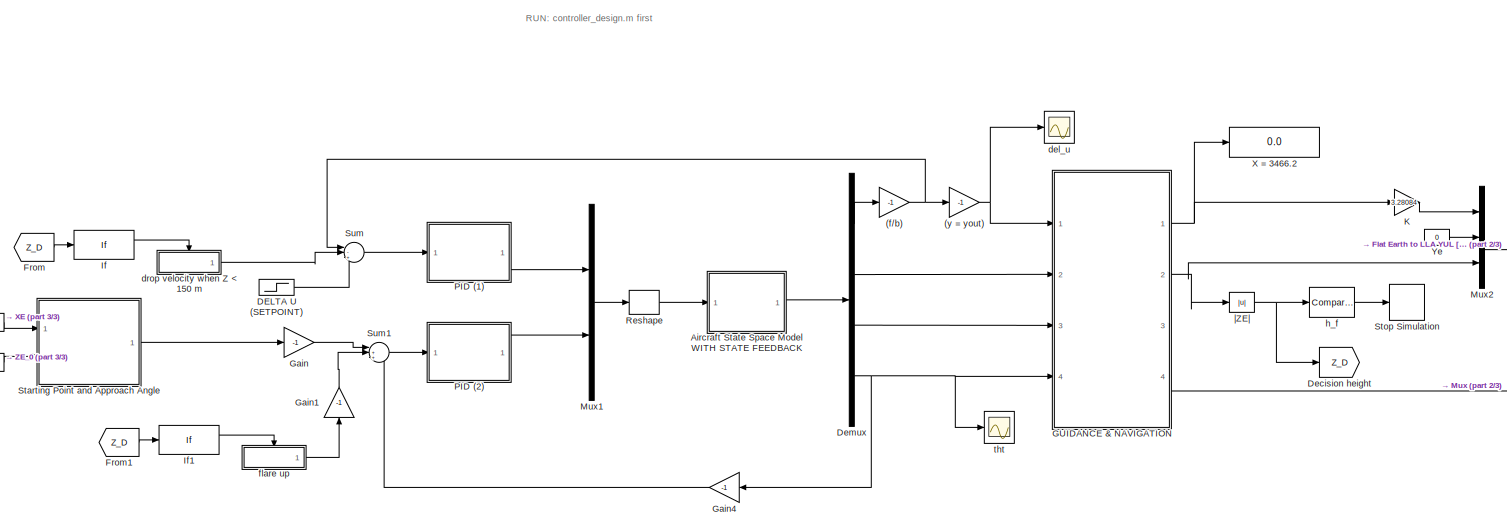
[diagram: root canvas - part 1/3, most of the canvas]
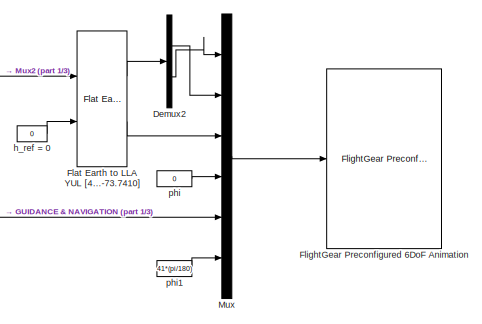
[diagram: root canvas - part 2/3, middle right region]
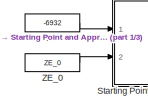
[diagram: root canvas - part 3/3, middle left region]
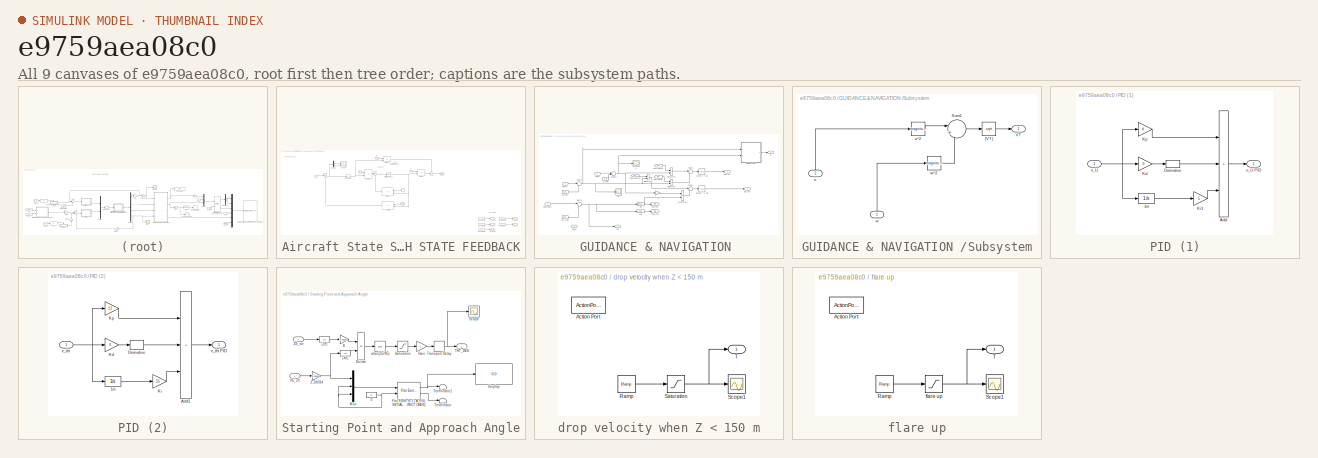
[diagram: thumbnail index - all 9 canvases of the model, root first then tree order]
MODEL slx_e9759aea08c0
KIND model
CONFIG AbsTol = auto
CONFIG EnableMultiTasking = on
CONFIG FixedStep = auto
CONFIG MaxStep = auto
CONFIG MinStep = auto
CONFIG RelTol = 1e-3
CONFIG SampleTimeConstraint = Unconstrained
CONFIG SolverName = ode45
CONFIG StartTime = 0.0
CONFIG StopTime = 196
BLOCK [Gain] (f//b)
  Gain = -1
BLOCK [Gain] (y = yout)
  Gain = -1
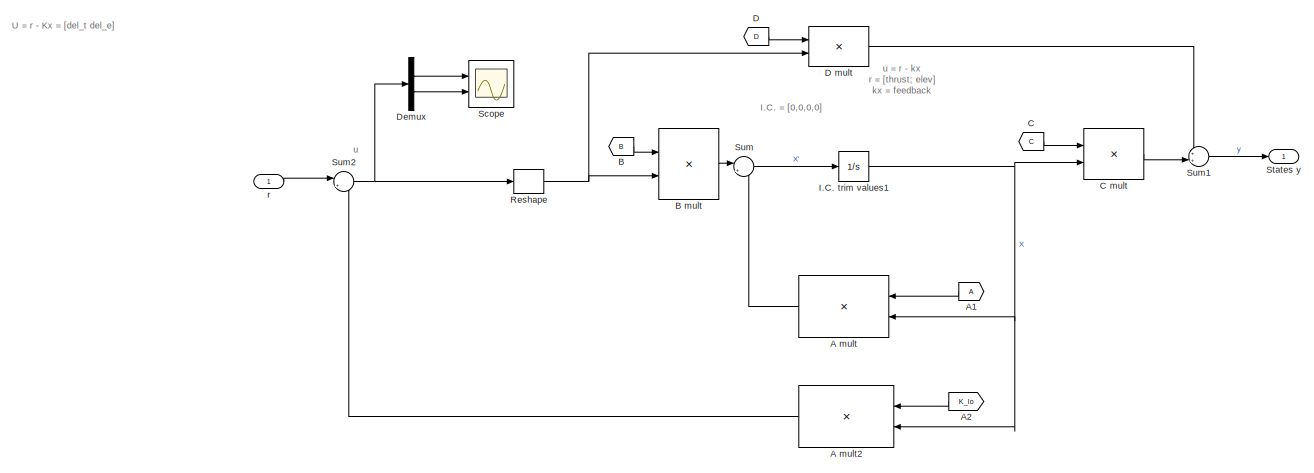
[diagram: Aircraft State Space Model WITH STATE FEEDBACK - part 1/2, central region]
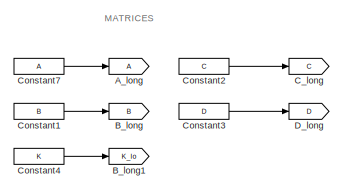
[diagram: Aircraft State Space Model WITH STATE FEEDBACK - part 2/2, bottom right region]
BLOCK [SubSystem] Aircraft State Space Model WITH STATE FEEDBACK
  Ports = [1, 1]
  RequestExecContextInheritance = off
BLOCK [Product] Aircraft State Space Model WITH STATE FEEDBACK/A mult
  Multiplication = Matrix(*)
  Ports = [2, 1]
  RndMeth = Zero
BLOCK [Product] Aircraft State Space Model WITH STATE FEEDBACK/A mult2
  Multiplication = Matrix(*)
  Ports = [2, 1]
  RndMeth = Zero
BLOCK [From] Aircraft State Space Model WITH STATE FEEDBACK/A1
  NameLocation = top
BLOCK [From] Aircraft State Space Model WITH STATE FEEDBACK/A2
  GotoTag = K_lo
  NameLocation = top
BLOCK [Goto] Aircraft State Space Model WITH STATE FEEDBACK/A_long
BLOCK [From] Aircraft State Space Model WITH STATE FEEDBACK/B
  GotoTag = B
  NameLocation = top
BLOCK [Product] Aircraft State Space Model WITH STATE FEEDBACK/B mult
  Multiplication = Matrix(*)
  Ports = [2, 1]
  RndMeth = Zero
BLOCK [Goto] Aircraft State Space Model WITH STATE FEEDBACK/B_long
  GotoTag = B
BLOCK [Goto] Aircraft State Space Model WITH STATE FEEDBACK/B_long1
  GotoTag = K_lo
BLOCK [From] Aircraft State Space Model WITH STATE FEEDBACK/C
  GotoTag = C
  NameLocation = top
BLOCK [Product] Aircraft State Space Model WITH STATE FEEDBACK/C mult
  Multiplication = Matrix(*)
  Ports = [2, 1]
  RndMeth = Zero
BLOCK [Goto] Aircraft State Space Model WITH STATE FEEDBACK/C_long
  GotoTag = C
BLOCK [Constant] Aircraft State Space Model WITH STATE FEEDBACK/Constant1
  Value = B
BLOCK [Constant] Aircraft State Space Model WITH STATE FEEDBACK/Constant2
  Value = C
BLOCK [Constant] Aircraft State Space Model WITH STATE FEEDBACK/Constant3
  Value = D
BLOCK [Constant] Aircraft State Space Model WITH STATE FEEDBACK/Constant4
  Value = K
BLOCK [Constant] Aircraft State Space Model WITH STATE FEEDBACK/Constant7
  Value = A
BLOCK [From] Aircraft State Space Model WITH STATE FEEDBACK/D
  GotoTag = D
  NameLocation = top
BLOCK [Product] Aircraft State Space Model WITH STATE FEEDBACK/D mult
  Multiplication = Matrix(*)
  Ports = [2, 1]
  RndMeth = Zero
BLOCK [Goto] Aircraft State Space Model WITH STATE FEEDBACK/D_long
  GotoTag = D
BLOCK [Demux] Aircraft State Space Model WITH STATE FEEDBACK/Demux
  Outputs = 2
  Ports = [1, 2]
BLOCK [Integrator] Aircraft State Space Model WITH STATE FEEDBACK/I.C. trim values1
  InitialCondition = [0;0;0;0]
  Ports = [1, 1]
BLOCK [Reshape] Aircraft State Space Model WITH STATE FEEDBACK/Reshape
  OutputDimensionality = Customize
  OutputDimensions = [2,1]
  Ports = [1, 1]
BLOCK [Scope] Aircraft State Space Model WITH STATE FEEDBACK/Scope
  Floating = off
  NumInputPorts = 2
  Ports = [2]
  ScopeSpecificationString = Simulink.scopes.TimeScopeBlockCfg('CurrentConfiguration', extmgr.ConfigurationSet(extmgr.Configuration('Core','General UI',true),extmgr.Configuration('Core','Source UI',true),extmgr.Configuration('Sources','WiredSimulink',true,'DataLogging',true,'DataLoggingVariableName','ScopeData2','DataLoggingSaveFormat','StructureWithTime'),extmgr.Configuration('Visuals','Time Domain',true,'SerializedDisplays'...<+2163ch>
BLOCK [Outport] Aircraft State Space Model WITH STATE FEEDBACK/States y
BLOCK [Sum] Aircraft State Space Model WITH STATE FEEDBACK/Sum
  Inputs = |++
  Ports = [2, 1]
BLOCK [Sum] Aircraft State Space Model WITH STATE FEEDBACK/Sum1
  Inputs = ++|
  Ports = [2, 1]
BLOCK [Sum] Aircraft State Space Model WITH STATE FEEDBACK/Sum2
  Inputs = |+-
  Ports = [2, 1]
BLOCK [Inport] Aircraft State Space Model WITH STATE FEEDBACK/r
BLOCK [Step] DELTA U (SETPOINT)
  After = 36
  SampleTime = 0
BLOCK [Goto] Decision height
  GotoTag = Z_D
BLOCK [Demux] Demux
  Ports = [1, 4]
BLOCK [Demux] Demux2
  Outputs = 2
  Ports = [1, 2]
BLOCK [Reference] Flat Earth to LLA YUL [45.4572 -73.7410]   REF=aerolibtransform2/Flat Earth to LLA
  Ports = [2, 2]
  SourceBlock = aerolibtransform2/Flat Earth to LLA
  SourceProductBaseCode = AE
  SourceType = Flat Earth to LLA
BLOCK [Reference] FlightGear Preconfigured 6DoF Animation  REF=aerolibfltsims/FlightGear
Preconfigured
6DoF Animation
  AttributesFormatString = Version Selected: %<xFlightGearVersion>
  Ports = [1]
  SourceBlock = aerolibfltsims/FlightGear\nPreconfigured\n6DoF Animation
  SourceProductBaseCode = AE
  SourceType = FlightGearQuick6DoFAnimation
BLOCK [From] From
  GotoTag = Z_D
BLOCK [From] From1
  GotoTag = Z_D
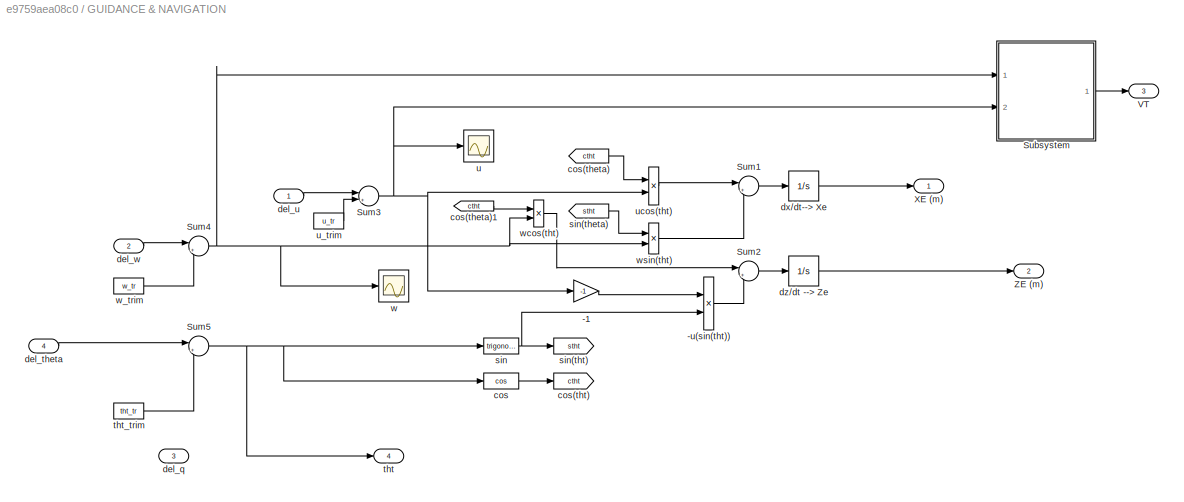
BLOCK [SubSystem] GUIDANCE & NAVIGATION 
  Ports = [4, 4]
  RequestExecContextInheritance = off
BLOCK [Gain] GUIDANCE & NAVIGATION /-1
  Gain = -1
BLOCK [Product] GUIDANCE & NAVIGATION /-u(sin(tht))
  Ports = [2, 1]
BLOCK [SubSystem] GUIDANCE & NAVIGATION /Subsystem
  Ports = [2, 1]
  RequestExecContextInheritance = off
BLOCK [Sum] GUIDANCE & NAVIGATION /Subsystem/Sum1
  Inputs = |++
  Ports = [2, 1]
BLOCK [Outport] GUIDANCE & NAVIGATION /Subsystem/VT
BLOCK [Inport] GUIDANCE & NAVIGATION /Subsystem/u
  NameLocation = right
  Port = 2
BLOCK [Math] GUIDANCE & NAVIGATION /Subsystem/u^2
  Operator = magnitude^2
  Ports = [1, 1]
  SignedPower = on
BLOCK [Inport] GUIDANCE & NAVIGATION /Subsystem/w
  NameLocation = right
BLOCK [Math] GUIDANCE & NAVIGATION /Subsystem/w^2
  Operator = magnitude^2
  Ports = [1, 1]
  SignedPower = on
BLOCK [Sqrt] GUIDANCE & NAVIGATION /Subsystem/|VT|
BLOCK [Sum] GUIDANCE & NAVIGATION /Sum1
  Inputs = |++
  Ports = [2, 1]
BLOCK [Sum] GUIDANCE & NAVIGATION /Sum2
  Inputs = |++
  Ports = [2, 1]
BLOCK [Sum] GUIDANCE & NAVIGATION /Sum3
  Inputs = |++
  Ports = [2, 1]
BLOCK [Sum] GUIDANCE & NAVIGATION /Sum4
  Inputs = |++
  Ports = [2, 1]
BLOCK [Sum] GUIDANCE & NAVIGATION /Sum5
  Inputs = |++
  Ports = [2, 1]
BLOCK [Outport] GUIDANCE & NAVIGATION /VT
  Port = 3
BLOCK [Outport] GUIDANCE & NAVIGATION /XE (m)
BLOCK [Outport] GUIDANCE & NAVIGATION /ZE (m)
  Port = 2
BLOCK [Trigonometry] GUIDANCE & NAVIGATION /cos
  Operator = cos
  Ports = [1, 1]
BLOCK [From] GUIDANCE & NAVIGATION /cos(theta)
  GotoTag = ctht
BLOCK [From] GUIDANCE & NAVIGATION /cos(theta)1
  GotoTag = ctht
BLOCK [Goto] GUIDANCE & NAVIGATION /cos(tht)
  GotoTag = ctht
BLOCK [Inport] GUIDANCE & NAVIGATION /del_q
  Port = 3
BLOCK [Inport] GUIDANCE & NAVIGATION /del_theta
  Port = 4
BLOCK [Inport] GUIDANCE & NAVIGATION /del_u
BLOCK [Inport] GUIDANCE & NAVIGATION /del_w
  Port = 2
BLOCK [Integrator] GUIDANCE & NAVIGATION /dx//dt--> Xe
  InitialCondition = XE_0
  Ports = [1, 1]
BLOCK [Integrator] GUIDANCE & NAVIGATION /dz//dt --> Ze
  InitialCondition = ZE_0
  Ports = [1, 1]
BLOCK [Trigonometry] GUIDANCE & NAVIGATION /sin
  Ports = [1, 1]
BLOCK [From] GUIDANCE & NAVIGATION /sin(theta)
  GotoTag = stht
BLOCK [Goto] GUIDANCE & NAVIGATION /sin(tht)
  GotoTag = stht
BLOCK [Outport] GUIDANCE & NAVIGATION /tht
  Port = 4
BLOCK [Constant] GUIDANCE & NAVIGATION /tht_trim
  Value = tht_tr
BLOCK [Scope] GUIDANCE & NAVIGATION /u
  Floating = off
  NumInputPorts = 1
  Ports = [1]
  ScopeSpecificationString = C++SS(StrPVP('Location','[188, 365, 512, 604]'),StrPVP('Open','off'),MxPVP('AxesTitles',54,'struct(''axes1'',''%<SignalLabel>'')'),MxPVP('ScopeGraphics',57,'struct(''FigureColor'',''[0.5 0.5 0.5]'',''AxesColor'',''[0 0 0]'',''AxesTickColor'',''[1 1 1]'',''LineColors'',''[1 1 0;1 0 1;0 1 1;1 0 0;0 1 0;0 0 1]'',''LineStyles'',''-|-|-|-|-|-'',''LineWidths'',''[0.5 0.5 0.5 0.5 0.5 0.5]'',''MarkerStyle...<+196ch>
BLOCK [Constant] GUIDANCE & NAVIGATION /u_trim
  Value = u_tr
BLOCK [Product] GUIDANCE & NAVIGATION /ucos(tht)
  Ports = [2, 1]
BLOCK [Scope] GUIDANCE & NAVIGATION /w
  Floating = off
  NumInputPorts = 1
  Ports = [1]
  ScopeSpecificationString = C++SS(StrPVP('Location','[188, 365, 512, 604]'),StrPVP('Open','off'),MxPVP('AxesTitles',54,'struct(''axes1'',''%<SignalLabel>'')'),MxPVP('ScopeGraphics',57,'struct(''FigureColor'',''[0.5 0.5 0.5]'',''AxesColor'',''[0 0 0]'',''AxesTickColor'',''[1 1 1]'',''LineColors'',''[1 1 0;1 0 1;0 1 1;1 0 0;0 1 0;0 0 1]'',''LineStyles'',''-|-|-|-|-|-'',''LineWidths'',''[0.5 0.5 0.5 0.5 0.5 0.5]'',''MarkerStyle...<+196ch>
BLOCK [Constant] GUIDANCE & NAVIGATION /w_trim
  Value = w_tr
BLOCK [Product] GUIDANCE & NAVIGATION /wcos(tht)
  Ports = [2, 1]
BLOCK [Product] GUIDANCE & NAVIGATION /wsin(tht)
  Ports = [2, 1]
BLOCK [Gain] Gain
  Gain = -1
BLOCK [Gain] Gain1
  Gain = -1
  NameLocation = right
BLOCK [Gain] Gain4
  Gain = -1
  NameLocation = top
BLOCK [If] If
  IfExpression = u1 <= 100
  Ports = [1, 2]
BLOCK [If] If1
  IfExpression = u1 <= 100
  Ports = [1, 2]
BLOCK [Gain] K
  Gain = 3.28084
BLOCK [Mux] Mux
  DisplayOption = bar
  Inputs = 6
  Ports = [6, 1]
BLOCK [Mux] Mux1
  DisplayOption = bar
  Inputs = 2
  Ports = [2, 1]
BLOCK [Mux] Mux2
  DisplayOption = bar
  Inputs = 3
  Ports = [3, 1]
BLOCK [SubSystem] PID (1)
  Ports = [1, 1]
  RequestExecContextInheritance = off
BLOCK [Integrator] PID (1)/1//s
  Ports = [1, 1]
BLOCK [Sum] PID (1)/Add
  IconShape = rectangular
  Inputs = +++
  Ports = [3, 1]
BLOCK [Derivative] PID (1)/Derivative
BLOCK [Gain] PID (1)/Kd
  Gain = 0
BLOCK [Gain] PID (1)/Ki1
  Gain = 5
BLOCK [Gain] PID (1)/Kp
BLOCK [Inport] PID (1)/e_U
BLOCK [Outport] PID (1)/e_U PID
BLOCK [SubSystem] PID (2)
  Ports = [1, 1]
  RequestExecContextInheritance = off
BLOCK [Integrator] PID (2)/1//s
  Ports = [1, 1]
BLOCK [Sum] PID (2)/Add1
  IconShape = rectangular
  Inputs = +++
  Ports = [3, 1]
BLOCK [Derivative] PID (2)/Derivative
BLOCK [Gain] PID (2)/Kd 
  Gain = 0
BLOCK [Gain] PID (2)/Ki 
  Gain = 55
BLOCK [Gain] PID (2)/Kp
  Gain = 12
BLOCK [Inport] PID (2)/e_tht
BLOCK [Outport] PID (2)/e_tht PID
BLOCK [Reshape] Reshape
  OutputDimensionality = Customize
  OutputDimensions = [2,1]
  Ports = [1, 1]
BLOCK [SubSystem] Starting Point and Approach Angle
  Ports = [2, 1]
  RequestExecContextInheritance = off
BLOCK [Constant] Starting Point and Approach Angle/0
  Value = 0
BLOCK [Gain] Starting Point and Approach Angle/3.28084
  Gain = 3.28084
BLOCK [Display] Starting Point and Approach Angle/Display
  Decimation = 1
  Format = long
  Ports = [1]
BLOCK [Product] Starting Point and Approach Angle/Divide
  Inputs = */
  Ports = [2, 1]
BLOCK [Reference] Starting Point and Approach Angle/Flat Earth to LLA {YUL INITIAL COORDS UPDATED - CORRECT ONES}  REF=aerolibtransform2/Flat Earth to LLA
  Ports = [2, 2]
  SourceBlock = aerolibtransform2/Flat Earth to LLA
  SourceProductBaseCode = AE
  SourceType = Flat Earth to LLA
BLOCK [Gain] Starting Point and Approach Angle/Gain
  Gain = -1
BLOCK [Gain] Starting Point and Approach Angle/K
  Gain = 3.28084
BLOCK [Mux] Starting Point and Approach Angle/Mux
  DisplayOption = bar
  Inputs = 3
  Ports = [3, 1]
BLOCK [Saturate] Starting Point and Approach Angle/Saturation
  LowerLimit = -0.5235
  UpperLimit = 0.5235
BLOCK [Scope] Starting Point and Approach Angle/Scope
  Floating = off
  NumInputPorts = 1
  Ports = [1]
  ScopeSpecificationString = C++SS(StrPVP('Location','[188, 365, 1263, 701]'),StrPVP('Open','off'),MxPVP('AxesTitles',54,'struct(''axes1'',''%<SignalLabel>'')'),MxPVP('ScopeGraphics',57,'struct(''FigureColor'',''[0.5 0.5 0.5]'',''AxesColor'',''[0 0 0]'',''AxesTickColor'',''[1 1 1]'',''LineColors'',''[1 1 0;1 0 1;0 1 1;1 0 0;0 1 0;0 0 1]'',''LineStyles'',''-|-|-|-|-|-'',''LineWidths'',''[0.5 0.5 0.5 0.5 0.5 0.5]'',''MarkerStyl...<+197ch>
BLOCK [Outport] Starting Point and Approach Angle/THT_DES
BLOCK [Terminator] Starting Point and Approach Angle/Terminator
BLOCK [Terminator] Starting Point and Approach Angle/Terminator1
BLOCK [TransportDelay] Starting Point and Approach Angle/Transport Delay
  Ports = [1, 1]
BLOCK [Inport] Starting Point and Approach Angle/XE_str
BLOCK [Inport] Starting Point and Approach Angle/ZE_str
  Port = 2
BLOCK [Trigonometry] Starting Point and Approach Angle/atan(ZE//XE)
  Operator = atan
  Ports = [1, 1]
BLOCK [Abs] Starting Point and Approach Angle/|Xe|
  SaturateOnIntegerOverflow = off
BLOCK [Abs] Starting Point and Approach Angle/|Ze|
  SaturateOnIntegerOverflow = off
BLOCK [Stop] Stop Simulation
BLOCK [Sum] Sum
  Inputs = |-++
  Ports = [3, 1]
BLOCK [Sum] Sum1
  Inputs = |++-
  Ports = [3, 1]
BLOCK [Display] X = 3466.2
  Decimation = 1
  Ports = [1]
BLOCK [Constant] XE 
  Value = -6932
BLOCK [Constant] Ye
  Value = 0
BLOCK [Constant] ZE_0
  Value = ZE_0
BLOCK [Scope] del_u
  Floating = off
  NumInputPorts = 1
  Ports = [1]
  ScopeSpecificationString = C++SS(StrPVP('Location','[10, 69, 1930, 1099]'),StrPVP('Open','off'),MxPVP('AxesTitles',54,'struct(''axes1'',''%<SignalLabel>'')'),MxPVP('ScopeGraphics',57,'struct(''FigureColor'',''[0.5 0.5 0.5]'',''AxesColor'',''[0 0 0]'',''AxesTickColor'',''[1 1 1]'',''LineColors'',''[1 1 0;1 0 1;0 1 1;1 0 0;0 1 0;0 0 1]'',''LineStyles'',''-|-|-|-|-|-'',''LineWidths'',''[0.5 0.5 0.5 0.5 0.5 0.5]'',''MarkerStyle...<+250ch>
BLOCK [SubSystem] drop velocity when Z < 150 m
  Ports = [0, 1, 0, 0, 0, 0, 0, 1]
  RequestExecContextInheritance = off
  TreatAsAtomicUnit = on
BLOCK [ActionPort] drop velocity when Z < 150 m/Action Port
  ActionPortLabel = if(u1 <= 100)
BLOCK [Reference] drop velocity when Z < 150 m/Ramp  REF=simulink/Sources/Ramp
  Ports = [0, 1]
  SourceBlock = simulink/Sources/Ramp
  SourceProductBaseCode = SL
  SourceType = Ramp
BLOCK [Saturate] drop velocity when Z < 150 m/Saturation
  LowerLimit = 0
  UpperLimit = 15
BLOCK [Scope] drop velocity when Z < 150 m/Scope1
  Floating = off
  NumInputPorts = 1
  Ports = [1]
  ScopeSpecificationString = C++SS(StrPVP('Location','[10, 60, 1930, 1050]'),StrPVP('Open','off'),MxPVP('AxesTitles',54,'struct(''axes1'',''%<SignalLabel>'')'),MxPVP('ScopeGraphics',57,'struct(''FigureColor'',''[0.5 0.5 0.5]'',''AxesColor'',''[0 0 0]'',''AxesTickColor'',''[1 1 1]'',''LineColors'',''[1 1 0;1 0 1;0 1 1;1 0 0;0 1 0;0 0 1]'',''LineStyles'',''-|-|-|-|-|-'',''LineWidths'',''[0.5 0.5 0.5 0.5 0.5 0.5]'',''MarkerStyle...<+261ch>
BLOCK [Outport] drop velocity when Z < 150 m/T
BLOCK [SubSystem] flare up
  Ports = [0, 1, 0, 0, 0, 0, 0, 1]
  RequestExecContextInheritance = off
  TreatAsAtomicUnit = on
BLOCK [ActionPort] flare up/Action Port
  ActionPortLabel = if(u1 <= 100)
BLOCK [Reference] flare up/Ramp  REF=simulink/Sources/Ramp
  Ports = [0, 1]
  SourceBlock = simulink/Sources/Ramp
  SourceProductBaseCode = SL
  SourceType = Ramp
BLOCK [Scope] flare up/Scope1
  Floating = off
  NumInputPorts = 1
  Ports = [1]
  ScopeSpecificationString = C++SS(StrPVP('Location','[10, 60, 1930, 1050]'),StrPVP('Open','off'),MxPVP('AxesTitles',54,'struct(''axes1'',''%<SignalLabel>'')'),MxPVP('ScopeGraphics',57,'struct(''FigureColor'',''[0.5 0.5 0.5]'',''AxesColor'',''[0 0 0]'',''AxesTickColor'',''[1 1 1]'',''LineColors'',''[1 1 0;1 0 1;0 1 1;1 0 0;0 1 0;0 0 1]'',''LineStyles'',''-|-|-|-|-|-'',''LineWidths'',''[0.5 0.5 0.5 0.5 0.5 0.5]'',''MarkerStyle...<+261ch>
BLOCK [Outport] flare up/T
BLOCK [Saturate] flare up/flare up
  LowerLimit = 0
  UpperLimit = 0.7403
BLOCK [Reference] h_f  REF=simulink/Logic and Bit
Operations/Compare
To Constant
  Ports = [1, 1]
  SourceBlock = simulink/Logic and Bit\nOperations/Compare\nTo Constant
  SourceProductBaseCode = SL
  SourceType = Compare To Constant
BLOCK [Constant] h_ref = 0
  Value = 0
BLOCK [Constant] phi
  Value = 0
BLOCK [Constant] phi1
  Value = 41*(pi/180)
BLOCK [Scope] tht
  Floating = off
  NumInputPorts = 1
  Ports = [1]
  ScopeSpecificationString = C++SS(StrPVP('Location','[10, 69, 1930, 1099]'),StrPVP('Open','off'),MxPVP('AxesTitles',54,'struct(''axes1'',''%<SignalLabel>'')'),MxPVP('ScopeGraphics',57,'struct(''FigureColor'',''[0.501960784313725 0.501960784313725 0.501960784313725]'',''AxesColor'',''[0 0 0]'',''AxesTickColor'',''[1 1 1]'',''LineColors'',''[1 1 0;1 0 1;0 1 1;1 0 0;0 1 0;0 0 1]'',''LineStyles'',''-|-|-|-|-|-'',''LineWidths'','...<+255ch>
BLOCK [Abs] |ZE|
  SaturateOnIntegerOverflow = off
ANNOTATION (root): RUN: controller_design.m first
ANNOTATION Aircraft State Space Model WITH STATE FEEDBACK: MATRICES
ANNOTATION Aircraft State Space Model WITH STATE FEEDBACK: I.C. = [0,0,0,0]
ANNOTATION Aircraft State Space Model WITH STATE FEEDBACK: U = r - Kx = [del_t del_e]
ANNOTATION Aircraft State Space Model WITH STATE FEEDBACK: u
ANNOTATION Aircraft State Space Model WITH STATE FEEDBACK: u = r - kx r = [thrust; elev] kx = feedback
NET (f//b):1 -> (y = yout):1, Sum:1
NET (y = yout):1 -> GUIDANCE & NAVIGATION :1, del_u:1
LINE Aircraft State Space Model WITH STATE FEEDBACK/A mult2:1 -> Aircraft State Space Model WITH STATE FEEDBACK/Sum2:2
LINE Aircraft State Space Model WITH STATE FEEDBACK/A mult:1 -> Aircraft State Space Model WITH STATE FEEDBACK/Sum:2
LINE Aircraft State Space Model WITH STATE FEEDBACK/A1:1 -> Aircraft State Space Model WITH STATE FEEDBACK/A mult:1
LINE Aircraft State Space Model WITH STATE FEEDBACK/A2:1 -> Aircraft State Space Model WITH STATE FEEDBACK/A mult2:1
LINE Aircraft State Space Model WITH STATE FEEDBACK/B mult:1 -> Aircraft State Space Model WITH STATE FEEDBACK/Sum:1
LINE Aircraft State Space Model WITH STATE FEEDBACK/B:1 -> Aircraft State Space Model WITH STATE FEEDBACK/B mult:1
LINE Aircraft State Space Model WITH STATE FEEDBACK/C mult:1 -> Aircraft State Space Model WITH STATE FEEDBACK/Sum1:2
LINE Aircraft State Space Model WITH STATE FEEDBACK/C:1 -> Aircraft State Space Model WITH STATE FEEDBACK/C mult:1
LINE Aircraft State Space Model WITH STATE FEEDBACK/Constant1:1 -> Aircraft State Space Model WITH STATE FEEDBACK/B_long:1
LINE Aircraft State Space Model WITH STATE FEEDBACK/Constant2:1 -> Aircraft State Space Model WITH STATE FEEDBACK/C_long:1
LINE Aircraft State Space Model WITH STATE FEEDBACK/Constant3:1 -> Aircraft State Space Model WITH STATE FEEDBACK/D_long:1
LINE Aircraft State Space Model WITH STATE FEEDBACK/Constant4:1 -> Aircraft State Space Model WITH STATE FEEDBACK/B_long1:1
LINE Aircraft State Space Model WITH STATE FEEDBACK/Constant7:1 -> Aircraft State Space Model WITH STATE FEEDBACK/A_long:1
LINE Aircraft State Space Model WITH STATE FEEDBACK/D mult:1 -> Aircraft State Space Model WITH STATE FEEDBACK/Sum1:1
LINE Aircraft State Space Model WITH STATE FEEDBACK/D:1 -> Aircraft State Space Model WITH STATE FEEDBACK/D mult:1
LINE Aircraft State Space Model WITH STATE FEEDBACK/Demux:1 -> Aircraft State Space Model WITH STATE FEEDBACK/Scope:1
LINE Aircraft State Space Model WITH STATE FEEDBACK/Demux:2 -> Aircraft State Space Model WITH STATE FEEDBACK/Scope:2
NET Aircraft State Space Model WITH STATE FEEDBACK/I.C. trim values1:1 -> Aircraft State Space Model WITH STATE FEEDBACK/A mult2:2, Aircraft State Space Model WITH STATE FEEDBACK/A mult:2, Aircraft State Space Model WITH STATE FEEDBACK/C mult:2
NET Aircraft State Space Model WITH STATE FEEDBACK/Reshape:1 -> Aircraft State Space Model WITH STATE FEEDBACK/B mult:2, Aircraft State Space Model WITH STATE FEEDBACK/D mult:2
LINE Aircraft State Space Model WITH STATE FEEDBACK/Sum1:1 -> Aircraft State Space Model WITH STATE FEEDBACK/States y:1
NET Aircraft State Space Model WITH STATE FEEDBACK/Sum2:1 -> Aircraft State Space Model WITH STATE FEEDBACK/Demux:1, Aircraft State Space Model WITH STATE FEEDBACK/Reshape:1
LINE Aircraft State Space Model WITH STATE FEEDBACK/Sum:1 -> Aircraft State Space Model WITH STATE FEEDBACK/I.C. trim values1:1
LINE Aircraft State Space Model WITH STATE FEEDBACK/r:1 -> Aircraft State Space Model WITH STATE FEEDBACK/Sum2:1
LINE Aircraft State Space Model WITH STATE FEEDBACK:1 -> Demux:1
LINE DELTA U (SETPOINT):1 -> Sum:3
LINE Demux2:1 -> Mux:2
LINE Demux2:2 -> Mux:1
LINE Demux:1 -> (f//b):1
LINE Demux:2 -> GUIDANCE & NAVIGATION :2
LINE Demux:3 -> GUIDANCE & NAVIGATION :3
NET Demux:4 -> GUIDANCE & NAVIGATION :4, Gain4:1, tht:1
LINE Flat Earth to LLA YUL [45.4572 -73.7410] :1 -> Demux2:1
LINE Flat Earth to LLA YUL [45.4572 -73.7410] :2 -> Mux:3
LINE From1:1 -> If1:1
LINE From:1 -> If:1
LINE GUIDANCE & NAVIGATION /-1:1 -> GUIDANCE & NAVIGATION /-u(sin(tht)):1
LINE GUIDANCE & NAVIGATION /-u(sin(tht)):1 -> GUIDANCE & NAVIGATION /Sum2:2
LINE GUIDANCE & NAVIGATION /Subsystem/Sum1:1 -> GUIDANCE & NAVIGATION /Subsystem/|VT|:1
LINE GUIDANCE & NAVIGATION /Subsystem/u:1 -> GUIDANCE & NAVIGATION /Subsystem/u^2:1
LINE GUIDANCE & NAVIGATION /Subsystem/u^2:1 -> GUIDANCE & NAVIGATION /Subsystem/Sum1:1
LINE GUIDANCE & NAVIGATION /Subsystem/w:1 -> GUIDANCE & NAVIGATION /Subsystem/w^2:1
LINE GUIDANCE & NAVIGATION /Subsystem/w^2:1 -> GUIDANCE & NAVIGATION /Subsystem/Sum1:2
LINE GUIDANCE & NAVIGATION /Subsystem/|VT|:1 -> GUIDANCE & NAVIGATION /Subsystem/VT:1
LINE GUIDANCE & NAVIGATION /Subsystem:1 -> GUIDANCE & NAVIGATION /VT:1
LINE GUIDANCE & NAVIGATION /Sum1:1 -> GUIDANCE & NAVIGATION /dx//dt--> Xe:1
LINE GUIDANCE & NAVIGATION /Sum2:1 -> GUIDANCE & NAVIGATION /dz//dt --> Ze:1
NET GUIDANCE & NAVIGATION /Sum3:1 -> GUIDANCE & NAVIGATION /-1:1, GUIDANCE & NAVIGATION /Subsystem:2, GUIDANCE & NAVIGATION /u:1, GUIDANCE & NAVIGATION /ucos(tht):2
NET GUIDANCE & NAVIGATION /Sum4:1 -> GUIDANCE & NAVIGATION /Subsystem:1, GUIDANCE & NAVIGATION /w:1, GUIDANCE & NAVIGATION /wcos(tht):2, GUIDANCE & NAVIGATION /wsin(tht):2
NET GUIDANCE & NAVIGATION /Sum5:1 -> GUIDANCE & NAVIGATION /cos:1, GUIDANCE & NAVIGATION /sin:1, GUIDANCE & NAVIGATION /tht:1
LINE GUIDANCE & NAVIGATION /cos(theta)1:1 -> GUIDANCE & NAVIGATION /wcos(tht):1
LINE GUIDANCE & NAVIGATION /cos(theta):1 -> GUIDANCE & NAVIGATION /ucos(tht):1
LINE GUIDANCE & NAVIGATION /cos:1 -> GUIDANCE & NAVIGATION /cos(tht):1
LINE GUIDANCE & NAVIGATION /del_theta:1 -> GUIDANCE & NAVIGATION /Sum5:1
LINE GUIDANCE & NAVIGATION /del_u:1 -> GUIDANCE & NAVIGATION /Sum3:1
LINE GUIDANCE & NAVIGATION /del_w:1 -> GUIDANCE & NAVIGATION /Sum4:1
LINE GUIDANCE & NAVIGATION /dx//dt--> Xe:1 -> GUIDANCE & NAVIGATION /XE (m):1
LINE GUIDANCE & NAVIGATION /dz//dt --> Ze:1 -> GUIDANCE & NAVIGATION /ZE (m):1
LINE GUIDANCE & NAVIGATION /sin(theta):1 -> GUIDANCE & NAVIGATION /wsin(tht):1
NET GUIDANCE & NAVIGATION /sin:1 -> GUIDANCE & NAVIGATION /-u(sin(tht)):2, GUIDANCE & NAVIGATION /sin(tht):1
LINE GUIDANCE & NAVIGATION /tht_trim:1 -> GUIDANCE & NAVIGATION /Sum5:2
LINE GUIDANCE & NAVIGATION /u_trim:1 -> GUIDANCE & NAVIGATION /Sum3:2
LINE GUIDANCE & NAVIGATION /ucos(tht):1 -> GUIDANCE & NAVIGATION /Sum1:1
LINE GUIDANCE & NAVIGATION /w_trim:1 -> GUIDANCE & NAVIGATION /Sum4:2
LINE GUIDANCE & NAVIGATION /wcos(tht):1 -> GUIDANCE & NAVIGATION /Sum2:1
LINE GUIDANCE & NAVIGATION /wsin(tht):1 -> GUIDANCE & NAVIGATION /Sum1:2
NET GUIDANCE & NAVIGATION :1 -> K:1, X = 3466.2:1
NET GUIDANCE & NAVIGATION :2 -> Mux2:3, |ZE|:1
LINE GUIDANCE & NAVIGATION :4 -> Mux:5
LINE Gain1:1 -> Sum1:2
LINE Gain4:1 -> Sum1:3
LINE Gain:1 -> Sum1:1
LINE If1:1 -> flare up:ifaction
LINE If:1 -> drop velocity when Z < 150 m:ifaction
LINE K:1 -> Mux2:1
LINE Mux1:1 -> Reshape:1
LINE Mux2:1 -> Flat Earth to LLA YUL [45.4572 -73.7410] :1
LINE Mux:1 -> FlightGear Preconfigured 6DoF Animation:1
LINE PID (1)/1//s:1 -> PID (1)/Ki1:1
LINE PID (1)/Add:1 -> PID (1)/e_U PID:1
LINE PID (1)/Derivative:1 -> PID (1)/Add:2
LINE PID (1)/Kd:1 -> PID (1)/Derivative:1
LINE PID (1)/Ki1:1 -> PID (1)/Add:3
LINE PID (1)/Kp:1 -> PID (1)/Add:1
NET PID (1)/e_U:1 -> PID (1)/1//s:1, PID (1)/Kd:1, PID (1)/Kp:1
LINE PID (1):1 -> Mux1:1
LINE PID (2)/1//s:1 -> PID (2)/Ki :1
LINE PID (2)/Add1:1 -> PID (2)/e_tht PID:1
LINE PID (2)/Derivative:1 -> PID (2)/Add1:2
LINE PID (2)/Kd :1 -> PID (2)/Derivative:1
LINE PID (2)/Ki :1 -> PID (2)/Add1:3
LINE PID (2)/Kp:1 -> PID (2)/Add1:1
NET PID (2)/e_tht:1 -> PID (2)/1//s:1, PID (2)/Kd :1, PID (2)/Kp:1
LINE PID (2):1 -> Mux1:2
LINE Reshape:1 -> Aircraft State Space Model WITH STATE FEEDBACK:1
NET Starting Point and Approach Angle/0:1 -> Starting Point and Approach Angle/Flat Earth to LLA {YUL INITIAL COORDS UPDATED - CORRECT ONES}:2, Starting Point and Approach Angle/Mux:2, Starting Point and Approach Angle/Mux:3
NET Starting Point and Approach Angle/3.28084:1 -> Starting Point and Approach Angle/Mux:1, Starting Point and Approach Angle/|Xe|:1
LINE Starting Point and Approach Angle/Divide:1 -> Starting Point and Approach Angle/atan(ZE//XE):1
NET Starting Point and Approach Angle/Flat Earth to LLA {YUL INITIAL COORDS UPDATED - CORRECT ONES}:1 -> Starting Point and Approach Angle/Display:1, Starting Point and Approach Angle/Terminator1:1
LINE Starting Point and Approach Angle/Flat Earth to LLA {YUL INITIAL COORDS UPDATED - CORRECT ONES}:2 -> Starting Point and Approach Angle/Terminator:1
LINE Starting Point and Approach Angle/Gain:1 -> Starting Point and Approach Angle/Transport Delay:1
LINE Starting Point and Approach Angle/K:1 -> Starting Point and Approach Angle/Divide:1
LINE Starting Point and Approach Angle/Mux:1 -> Starting Point and Approach Angle/Flat Earth to LLA {YUL INITIAL COORDS UPDATED - CORRECT ONES}:1
LINE Starting Point and Approach Angle/Saturation:1 -> Starting Point and Approach Angle/Gain:1
NET Starting Point and Approach Angle/Transport Delay:1 -> Starting Point and Approach Angle/Scope:1, Starting Point and Approach Angle/THT_DES:1
LINE Starting Point and Approach Angle/XE_str:1 -> Starting Point and Approach Angle/3.28084:1
LINE Starting Point and Approach Angle/ZE_str:1 -> Starting Point and Approach Angle/|Ze|:1
LINE Starting Point and Approach Angle/atan(ZE//XE):1 -> Starting Point and Approach Angle/Saturation:1
LINE Starting Point and Approach Angle/|Xe|:1 -> Starting Point and Approach Angle/Divide:2
LINE Starting Point and Approach Angle/|Ze|:1 -> Starting Point and Approach Angle/K:1
LINE Starting Point and Approach Angle:1 -> Gain:1
LINE Sum1:1 -> PID (2):1
LINE Sum:1 -> PID (1):1
LINE XE :1 -> Starting Point and Approach Angle:1
LINE Ye:1 -> Mux2:2
LINE ZE_0:1 -> Starting Point and Approach Angle:2
LINE drop velocity when Z < 150 m/Ramp:1 -> drop velocity when Z < 150 m/Saturation:1
NET drop velocity when Z < 150 m/Saturation:1 -> drop velocity when Z < 150 m/Scope1:1, drop velocity when Z < 150 m/T:1
LINE drop velocity when Z < 150 m:1 -> Sum:2
LINE flare up/Ramp:1 -> flare up/flare up:1
NET flare up/flare up:1 -> flare up/Scope1:1, flare up/T:1
LINE flare up:1 -> Gain1:1
LINE h_f:1 -> Stop Simulation:1
LINE h_ref = 0:1 -> Flat Earth to LLA YUL [45.4572 -73.7410] :2
LINE phi1:1 -> Mux:6
LINE phi:1 -> Mux:4
NET |ZE|:1 -> Decision height:1, h_f:1
note: NET lines group one-source signal fan-out (src -> all destinations, sorted); 1:1 wires keep LINE
